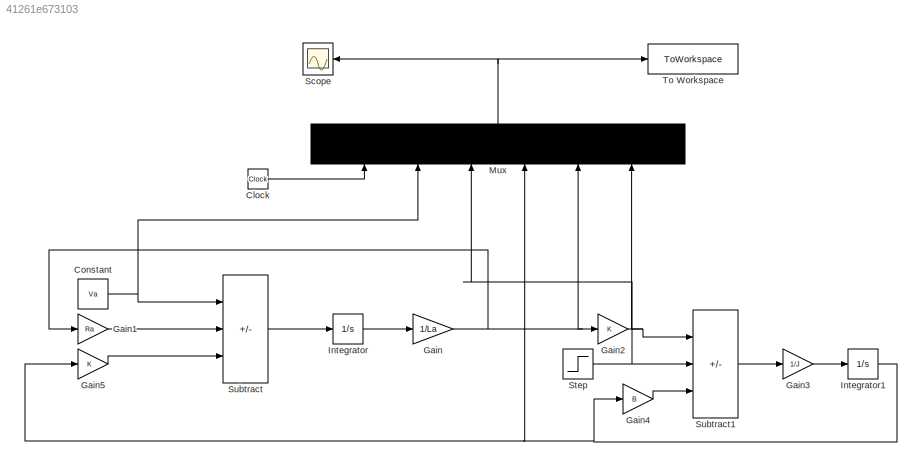
MODEL slx_41261e673103
KIND model
CONFIG AbsTol = auto
CONFIG EnableMultiTasking = off
CONFIG FixedStep = auto
CONFIG MaxStep = auto
CONFIG MinStep = auto
CONFIG RelTol = 1e-3
CONFIG SampleTimeConstraint = Unconstrained
CONFIG Solver = VariableStepAuto
CONFIG SolverName = VariableStepAuto
CONFIG StartTime = 0.0
CONFIG StopTime = 5
BLOCK [Clock] Clock
BLOCK [Constant] Constant
  SampleTime = 1e-3
  Value = Va
BLOCK [Gain] Gain
  Gain = 1/La
BLOCK [Gain] Gain1
  Gain = Ra
BLOCK [Gain] Gain2
  Gain = K
BLOCK [Gain] Gain3
  Gain = 1/J
BLOCK [Gain] Gain4
  Gain = B
BLOCK [Gain] Gain5
  Gain = K
BLOCK [Integrator] Integrator
  Ports = [1, 1]
BLOCK [Integrator] Integrator1
  Ports = [1, 1]
BLOCK [Mux] Mux
  Inputs = 6
  NameLocation = right
  Ports = [6, 1]
BLOCK [Scope] Scope
  Floating = off
  NumInputPorts = 1
  Ports = [1]
  ScopeSpecificationString = Simulink.scopes.TimeScopeBlockCfg('CurrentConfiguration', extmgr.ConfigurationSet(extmgr.Configuration('Core','General UI',true,'FigureColor',[0 0 0]),extmgr.Configuration('Core','Source UI',true),extmgr.Configuration('Sources','WiredSimulink',true),extmgr.Configuration('Visuals','Time Domain',true,'SerializedDisplays',{struct('MinYLimReal','-48.71146','MaxYLimReal','438.40315','YLabelReal','','Mi...<+1543ch>
BLOCK [Step] Step
  After = 8*Load
  SampleTime = 1e-3
  Time = 2
BLOCK [Sum] Subtract
  IconShape = rectangular
  Inputs = +--
  Ports = [3, 1]
BLOCK [Sum] Subtract1
  IconShape = rectangular
  Inputs = +--
  Ports = [3, 1]
BLOCK [ToWorkspace] To Workspace
  FixptAsFi = on
  MaxDataPoints = inf
  Ports = [1]
  SampleTime = -1
  Save2DSignal = 2-D array (concatenate along first dimension)
  SaveFormat = Structure
  VariableName = y
LINE Clock:1 -> Mux:1
NET Constant:1 -> Mux:2, Subtract:1
LINE Gain1:1 -> Subtract:2
NET Gain2:1 -> Mux:6, Subtract1:1
LINE Gain3:1 -> Integrator1:1
LINE Gain4:1 -> Subtract1:3
LINE Gain5:1 -> Subtract:3
NET Gain:1 -> Gain1:1, Gain2:1, Mux:5
NET Integrator1:1 -> Gain4:1, Gain5:1, Mux:4
LINE Integrator:1 -> Gain:1
NET Mux:1 -> Scope:1, To Workspace:1
NET Step:1 -> Mux:3, Subtract1:2
LINE Subtract1:1 -> Gain3:1
LINE Subtract:1 -> Integrator:1
note: NET lines group one-source signal fan-out (src -> all destinations, sorted); 1:1 wires keep LINE
